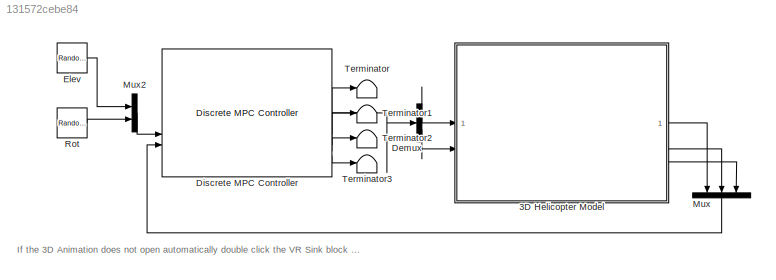
MODEL mdl_131572cebe84
KIND model
CONFIG AbsTol = auto
CONFIG EnableMultiTasking = on
CONFIG FixedStep = auto
CONFIG InitFcn = ThreeDOFHeli_Setup
CONFIG MaxStep = auto
CONFIG MinStep = auto
CONFIG RelTol = 1e-3
CONFIG SampleTimeConstraint = Unconstrained
CONFIG SolverName = ode45
CONFIG StartTime = 0.0
CONFIG StopTime = inf
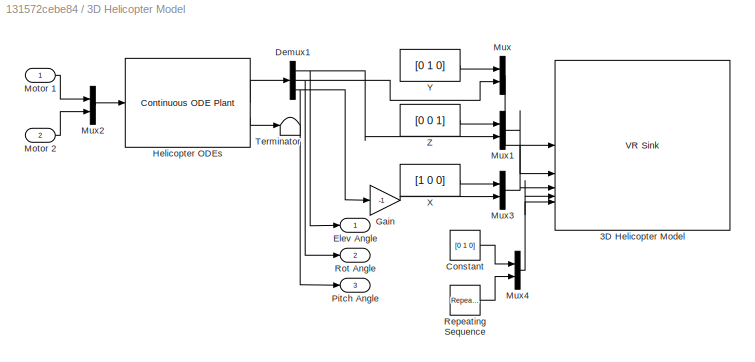
BLOCK [SubSystem] 3D Helicopter Model
BLOCK [Reference] 3D Helicopter Model/3D Helicopter Model  REF=vrlib/VR Sink
  InstantiateOnLoad = on
  SourceBlock = vrlib/VR Sink
  SourceType = Virtual Reality Sink
BLOCK [Constant] 3D Helicopter Model/Constant
  Value = [0 1 0]
BLOCK [Demux] 3D Helicopter Model/Demux1
  Outputs = 3
BLOCK [Outport] 3D Helicopter Model/Elev Angle
BLOCK [Gain] 3D Helicopter Model/Gain
  Gain = -1
BLOCK [Reference] 3D Helicopter Model/Helicopter ODEs  REF=jMPClib/MPC Blocks/Continuous ODE Plant
  SourceBlock = jMPClib/MPC Blocks/Continuous ODE Plant
  SourceProductName = JMPC Toolbox
  SourceType = Continuous ODE Model
BLOCK [Inport] 3D Helicopter Model/Motor 1
BLOCK [Inport] 3D Helicopter Model/Motor 2
  Port = 2
BLOCK [Mux] 3D Helicopter Model/Mux
  DisplayOption = bar
  Inputs = 2
BLOCK [Mux] 3D Helicopter Model/Mux1
  DisplayOption = bar
  Inputs = 2
BLOCK [Mux] 3D Helicopter Model/Mux2
  DisplayOption = bar
  Inputs = 2
BLOCK [Mux] 3D Helicopter Model/Mux3
  DisplayOption = bar
  Inputs = 2
BLOCK [Mux] 3D Helicopter Model/Mux4
  DisplayOption = bar
  Inputs = 2
BLOCK [Outport] 3D Helicopter Model/Pitch Angle
  Port = 3
BLOCK [Reference] 3D Helicopter Model/Repeating Sequence  REF=simulink/Sources/Repeating
Sequence
  SourceBlock = simulink/Sources/Repeating\nSequence
  SourceType = Repeating table
BLOCK [Outport] 3D Helicopter Model/Rot Angle
  Port = 2
BLOCK [Terminator] 3D Helicopter Model/Terminator
BLOCK [Constant] 3D Helicopter Model/X
  Value = [1 0 0]
BLOCK [Constant] 3D Helicopter Model/Y
  Value = [0 1 0]
BLOCK [Constant] 3D Helicopter Model/Z
  Value = [0 0 1]
BLOCK [Demux] Demux
  Outputs = 2
BLOCK [Reference] Discrete MPC Controller  REF=jMPClib/MPC Blocks/Discrete MPC Controller
  SourceBlock = jMPClib/MPC Blocks/Discrete MPC Controller
  SourceProductName = JMPC Toolbox
  SourceType = Model Predictive Controller
BLOCK [RandomNumber] Elev
  SampleTime = 20
  Seed = 1
  Variance = 0.05
BLOCK [Mux] Mux
  DisplayOption = bar
  Inputs = 3
  NameLocation = left
BLOCK [Mux] Mux2
  DisplayOption = bar
  Inputs = 2
BLOCK [RandomNumber] Rot
  SampleTime = 30
  Seed = 42452
  Variance = 2
BLOCK [Terminator] Terminator
BLOCK [Terminator] Terminator1
BLOCK [Terminator] Terminator2
BLOCK [Terminator] Terminator3
ANNOTATION (root): If the 3D Animation does not open automatically double click the VR Sink block inside the Helicopter Block
LINE 3D Helicopter Model/Constant:1 -> 3D Helicopter Model/Mux4:1
NET 3D Helicopter Model/Demux1:1 -> 3D Helicopter Model/Elev Angle:1, 3D Helicopter Model/Mux1:2
NET 3D Helicopter Model/Demux1:2 -> 3D Helicopter Model/Mux:2, 3D Helicopter Model/Rot Angle:1
NET 3D Helicopter Model/Demux1:3 -> 3D Helicopter Model/Gain:1, 3D Helicopter Model/Pitch Angle:1
LINE 3D Helicopter Model/Gain:1 -> 3D Helicopter Model/Mux3:2
LINE 3D Helicopter Model/Helicopter ODEs:1 -> 3D Helicopter Model/Demux1:1
LINE 3D Helicopter Model/Helicopter ODEs:2 -> 3D Helicopter Model/Terminator:1
LINE 3D Helicopter Model/Motor 1:1 -> 3D Helicopter Model/Mux2:1
LINE 3D Helicopter Model/Motor 2:1 -> 3D Helicopter Model/Mux2:2
LINE 3D Helicopter Model/Mux1:1 -> 3D Helicopter Model/3D Helicopter Model:2
LINE 3D Helicopter Model/Mux2:1 -> 3D Helicopter Model/Helicopter ODEs:1
LINE 3D Helicopter Model/Mux3:1 -> 3D Helicopter Model/3D Helicopter Model:3
NET 3D Helicopter Model/Mux4:1 -> 3D Helicopter Model/3D Helicopter Model:4, 3D Helicopter Model/3D Helicopter Model:5
LINE 3D Helicopter Model/Mux:1 -> 3D Helicopter Model/3D Helicopter Model:1
LINE 3D Helicopter Model/Repeating Sequence:1 -> 3D Helicopter Model/Mux4:2
LINE 3D Helicopter Model/X:1 -> 3D Helicopter Model/Mux3:1
LINE 3D Helicopter Model/Y:1 -> 3D Helicopter Model/Mux:1
LINE 3D Helicopter Model/Z:1 -> 3D Helicopter Model/Mux1:1
LINE 3D Helicopter Model:1 -> Mux:1
LINE 3D Helicopter Model:2 -> Mux:2
LINE 3D Helicopter Model:3 -> Mux:3
LINE Demux:1 -> 3D Helicopter Model:1
LINE Demux:2 -> 3D Helicopter Model:2
LINE Discrete MPC Controller:1 -> Demux:1
LINE Discrete MPC Controller:2 -> Terminator:1
LINE Discrete MPC Controller:3 -> Terminator1:1
LINE Discrete MPC Controller:4 -> Terminator2:1
LINE Discrete MPC Controller:5 -> Terminator3:1
LINE Elev:1 -> Mux2:1
LINE Mux2:1 -> Discrete MPC Controller:2
LINE Mux:1 -> Discrete MPC Controller:3
LINE Rot:1 -> Mux2:2
note: NET lines group one-source signal fan-out (src -> all destinations, sorted); 1:1 wires keep LINE
